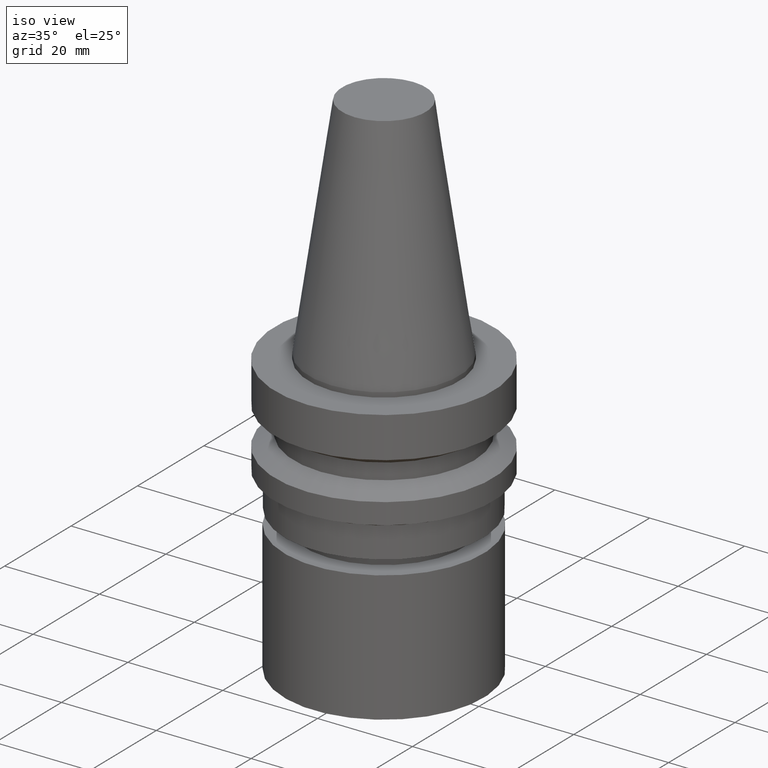
[diagram: clean part render]
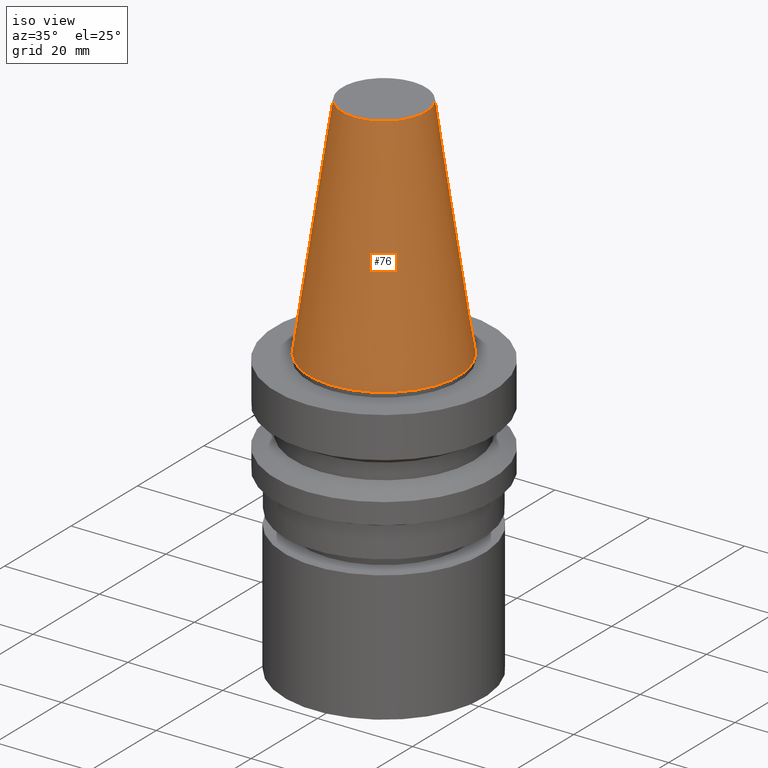
[diagram: same view with one face highlighted and labeled with its STEP entity id]
A machine part, iso view. The second image highlights one B-rep face of the part: STEP entity #76.
In plain terms, the highlighted conical surface has half-angle 8.297 deg.
Its self-contained STEP definition (entity closure, byte-faithful):
#76=ADVANCED_FACE('Unnamed[1]',(#202,#203),#204,.T.);
#87=EDGE_CURVE('Unnamed[1]',#218,#218,#219,.T.);
#126=EDGE_CURVE('Unnamed[1]',#278,#278,#279,.T.);
#202=FACE_BOUND('',#378,.T.);
#203=FACE_BOUND('',#379,.T.);
#204=CONICAL_SURFACE('',#380,12.3457500009933,0.144815870013618);
#218=VERTEX_POINT('',#397);
#219=CIRCLE('',#398,15.875);
#278=VERTEX_POINT('',#471);
#279=CIRCLE('',#472,8.81650000198669);
#378=EDGE_LOOP('',(#581));
#379=EDGE_LOOP('',(#582));
#380=AXIS2_PLACEMENT_3D('',#583,#584,#585);
#397=CARTESIAN_POINT('',(-1.95674482349743E-031,15.875,1.94412679364642E-015));
#398=AXIS2_PLACEMENT_3D('',#598,#599,#600);
#471=CARTESIAN_POINT('',(-2.96364525393659E-015,8.81650000198669,48.4));
#472=AXIS2_PLACEMENT_3D('',#664,#665,#666);
#581=ORIENTED_EDGE('',*,*,#87,.F.);
#582=ORIENTED_EDGE('',*,*,#126,.T.);
#583=CARTESIAN_POINT('',(-1.4818226269683E-015,-2.96364525393659E-015,24.2));
#584=DIRECTION('',(6.12323399573677E-017,1.22464679914735E-016,-1.0));
#585=DIRECTION('',(-1.23259516440783E-032,1.0,1.22464679914735E-016));
#598=CARTESIAN_POINT('',(0.0,0.0,0.0));
#599=DIRECTION('',(6.12323399573677E-017,1.22464679914735E-016,-1.0));
#600=DIRECTION('',(-1.23259516440783E-032,1.0,1.22464679914735E-016));
#664=CARTESIAN_POINT('',(-2.96364525393659E-015,-5.92729050787319E-015,48.4));
#665=DIRECTION('',(6.12323399573677E-017,1.22464679914735E-016,-1.0));
#666=DIRECTION('',(-1.23259516440783E-032,1.0,1.22464679914735E-016));